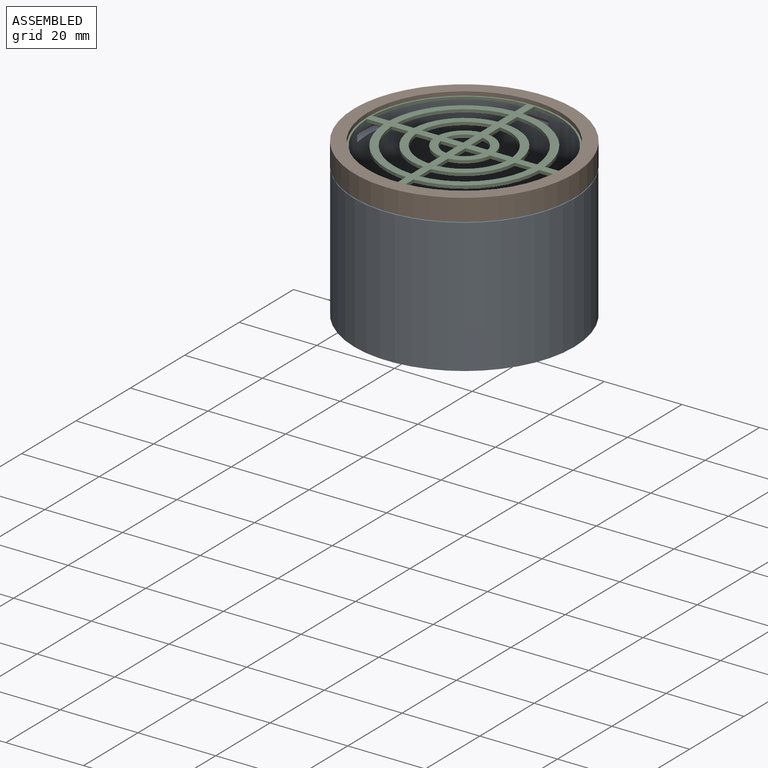
[diagram: assembled view]
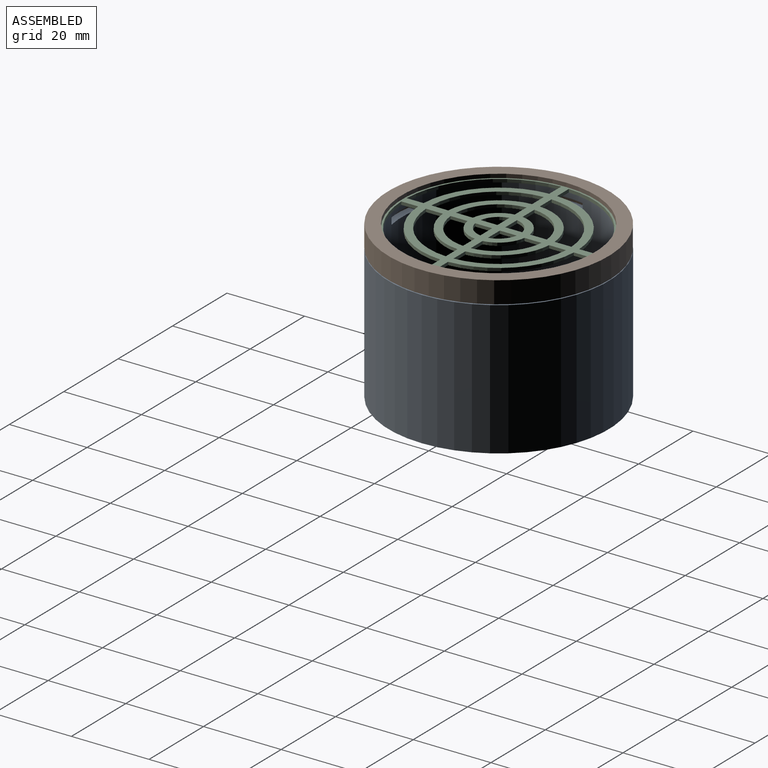
[diagram: assembled view, second angle]
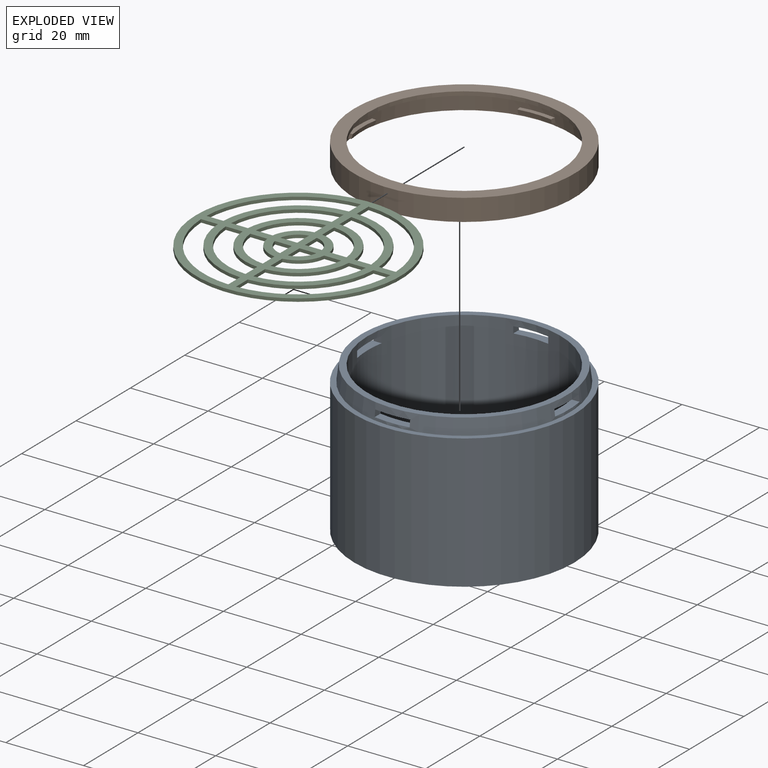
[diagram: exploded view]
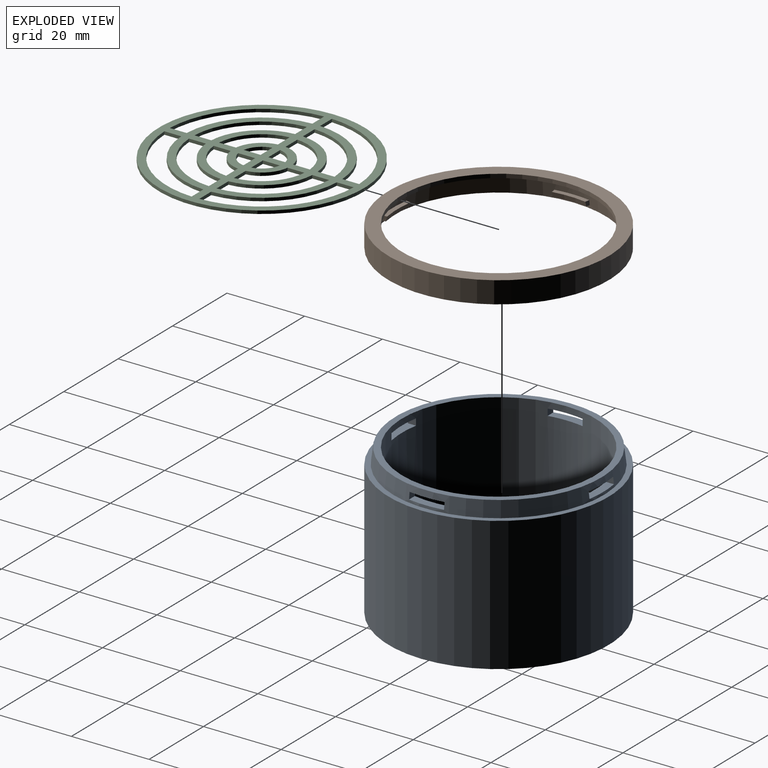
[diagram: exploded view, second angle]
ASSEMBLY  parts=3 mates=2
PART A: 22 faces, bbox 56.7x56.7x38.5 mm
  f0: plane 9x2.47mm, normal (0,0,1), area 18.7mm2, adj f5,f7,f8,f9
  f1: plane 2.09x1.7mm, normal (0,-1,0), area 3.4mm2, adj f4,f6,f8,f9
  f2: plane 9x2.26mm, normal (0,0,-1), area 16.7mm2, adj f5,f7,f8,f9
  f3: plane 2.09x1.7mm, normal (0,1,0), area 3.4mm2, adj f4,f6,f8,f9
  f4: plane 9x2.47mm, normal (0,0,1), area 18.7mm2, adj f1,f3,f8,f9
  f5: plane 2.09x1.7mm, normal (0,-1,0), area 3.4mm2, adj f0,f2,f8,f9
  f6: plane 9x2.26mm, normal (0,0,-1), area 16.7mm2, adj f1,f3,f8,f9
  f7: plane 2.09x1.7mm, normal (0,1,0), area 3.4mm2, adj f0,f2,f8,f9
  f8: cone r=27mm half-angle=7.1deg, axis (0,0,-1), area 615.6mm2, adj f0,f1,f2,f3,f4,f5,f6,f7
  f9: cylinder r=24.85mm len=49.7mm, axis (0,0,-1), area 5949.5mm2, adj f0,f1,f2,f3,f4,f5,f6,f7
  f10: plane 56.7x56.7mm, normal (0,0,-1), area 585mm2, adj f9,f11
  f11: cylinder r=28.35mm len=56.7mm, axis (0,0,-1), area 6145.2mm2, adj f10,f12
  f12: plane 56.7x56.7mm, normal (0,0,1), area 234.7mm2, adj f8,f11
  f13: plane 53x53mm, normal (0,0,1), area 266.2mm2, adj f8,f9
  f14: plane 2.09x1.7mm, normal (1,0,0), area 3.4mm2, adj f8,f9,f15,f17
  f15: plane 9x2.26mm, normal (0,0,-1), area 16.7mm2, adj f8,f9,f14,f16
  f16: plane 2.09x1.7mm, normal (-1,0,0), area 3.4mm2, adj f8,f9,f15,f17
  f17: plane 9x2.47mm, normal (0,0,1), area 18.7mm2, adj f8,f9,f14,f16
  f18: plane 2.09x1.7mm, normal (-1,0,0), area 3.4mm2, adj f8,f9,f20,f21
  f19: plane 2.09x1.7mm, normal (1,0,0), area 3.4mm2, adj f8,f9,f20,f21
  f20: plane 9x2.47mm, normal (0,0,1), area 18.7mm2, adj f8,f9,f18,f19
  f21: plane 9x2.26mm, normal (0,0,-1), area 16.7mm2, adj f8,f9,f18,f19
PART B: 26 faces, bbox 56.7x56.7x5.6 mm
  f0: plane 9x1.56mm, normal (0,0,1), area 10.6mm2, adj f1,f2,f4,f15
  f1: cone r=26.05mm half-angle=15deg, axis (0,0,-1), area 10.8mm2, adj f0,f2,f3,f4
  f2: plane 1.33x1.2mm, normal (-0.99,0.17,0), area 1.3mm2, adj f0,f1,f3,f15
  f3: plane 9.04x1.39mm, normal (0,0,-1), area 9.2mm2, adj f1,f2,f4,f15
  f4: plane 1.33x1.2mm, normal (0.99,0.17,0), area 1.3mm2, adj f0,f1,f3,f15
  f5: plane 9x1.56mm, normal (0,0,1), area 10.6mm2, adj f6,f7,f9,f15
  f6: cone r=26.05mm half-angle=15deg, axis (0,0,-1), area 10.8mm2, adj f5,f7,f8,f9
  f7: plane 1.33x1.2mm, normal (0.17,0.99,0), area 1.3mm2, adj f5,f6,f8,f15
  f8: plane 9.04x1.39mm, normal (0,0,-1), area 9.2mm2, adj f6,f7,f9,f15
  f9: plane 1.33x1.2mm, normal (0.17,-0.99,0), area 1.3mm2, adj f5,f6,f8,f15
  f10: plane 9x1.56mm, normal (0,0,1), area 10.6mm2, adj f11,f12,f14,f15
  f11: cone r=26.05mm half-angle=15deg, axis (0,0,-1), area 10.8mm2, adj f10,f12,f13,f14
  f12: plane 1.33x1.2mm, normal (0.99,-0.17,0), area 1.3mm2, adj f10,f11,f13,f15
  f13: plane 9.04x1.39mm, normal (0,0,-1), area 9.2mm2, adj f11,f12,f14,f15
  f14: plane 1.33x1.2mm, normal (-0.99,-0.17,0), area 1.3mm2, adj f10,f11,f13,f15
  f15: cone r=26.92mm half-angle=7.1deg, axis (0,0,-1), area 750.5mm2, adj f0,f2,f3,f4,f5,f7,f8,f9
  f16: cylinder r=24.85mm len=49.7mm, axis (0,0,-1), area 156.1mm2, adj f17,f20
  f17: plane 53.85x53.85mm, normal (0,0,-1), area 337.3mm2, adj f15,f16
  f18: plane 56.7x56.7mm, normal (0,0,-1), area 149.1mm2, adj f15,f19
  f19: cylinder r=28.35mm len=56.7mm, axis (0,0,-1), area 999.3mm2, adj f18,f20
  f20: plane 56.7x56.7mm, normal (0,0,1), area 585mm2, adj f16,f19
  f21: plane 9x1.56mm, normal (0,0,1), area 10.6mm2, adj f15,f22,f24,f25
  f22: cone r=26.05mm half-angle=15deg, axis (0,0,-1), area 10.8mm2, adj f21,f23,f24,f25
  f23: plane 9.04x1.39mm, normal (0,0,-1), area 9.2mm2, adj f15,f22,f24,f25
  f24: plane 1.33x1.2mm, normal (-0.17,0.99,0), area 1.3mm2, adj f15,f21,f22,f23
  f25: plane 1.33x1.2mm, normal (-0.17,-0.99,0), area 1.3mm2, adj f15,f21,f22,f23
PART C: 63 faces, bbox 52.8x52.8x0.8 mm
  f0: plane 4.35x0.8mm, normal (0,-1,0), area 3.5mm2, adj f1,f3,f45,f46
  f1: cylinder r=24.4mm len=23.38mm, axis (0,0,1), area 29.1mm2, adj f0,f2,f45,f46
  f2: plane 4.35x0.8mm, normal (1,0,0), area 3.5mm2, adj f1,f3,f45,f46
  f3: cylinder r=20.06mm len=19.03mm, axis (0,0,1), area 23.6mm2, adj f0,f2,f45,f46
  f4: plane 4.35x0.8mm, normal (0,-1,0), area 3.5mm2, adj f5,f7,f45,f46
  f5: cylinder r=18.06mm len=17.03mm, axis (0,0,1), area 21.1mm2, adj f4,f6,f45,f46
  f6: plane 4.35x0.8mm, normal (1,0,0), area 3.5mm2, adj f5,f7,f45,f46
  f7: cylinder r=13.73mm len=12.69mm, axis (0,0,1), area 15.6mm2, adj f4,f6,f45,f46
  f8: cylinder r=7.41mm len=6.35mm, axis (0,0,1), area 7.7mm2, adj f9,f11,f45,f46
  f9: plane 4.35x0.8mm, normal (1,0,0), area 3.5mm2, adj f8,f10,f45,f46
  f10: cylinder r=11.73mm len=10.69mm, axis (0,0,1), area 13.1mm2, adj f9,f11,f45,f46
  f11: plane 4.35x0.8mm, normal (0,-1,0), area 3.5mm2, adj f8,f10,f45,f46
  f12: plane 4.35x0.8mm, normal (1,0,0), area 3.5mm2, adj f13,f14,f45,f46
  f13: plane 4.35x0.8mm, normal (0,-1,0), area 3.5mm2, adj f12,f14,f45,f46
  f14: cylinder r=5.44mm len=4.35mm, axis (0,0,1), area 5.2mm2, adj f12,f13,f45,f46
  f15: plane 4.35x0.8mm, normal (-1,0,0), area 3.5mm2, adj f16,f18,f45,f46
  f16: cylinder r=24.4mm len=23.38mm, axis (0,0,1), area 29.1mm2, adj f15,f17,f45,f46
  f17: plane 4.35x0.8mm, normal (0,-1,0), area 3.5mm2, adj f16,f18,f45,f46
  f18: cylinder r=20.06mm len=19.03mm, axis (0,0,1), area 23.6mm2, adj f15,f17,f45,f46
  f19: plane 4.35x0.8mm, normal (-1,0,0), area 3.5mm2, adj f20,f22,f45,f46
  f20: cylinder r=18.06mm len=17.03mm, axis (0,0,1), area 21.1mm2, adj f19,f21,f45,f46
  f21: plane 4.35x0.8mm, normal (0,-1,0), area 3.5mm2, adj f20,f22,f45,f46
  f22: cylinder r=13.73mm len=12.69mm, axis (0,0,1), area 15.6mm2, adj f19,f21,f45,f46
  f23: cylinder r=7.41mm len=6.35mm, axis (0,0,1), area 7.7mm2, adj f24,f26,f45,f46
  f24: plane 4.35x0.8mm, normal (0,-1,0), area 3.5mm2, adj f23,f25,f45,f46
  f25: cylinder r=11.73mm len=10.69mm, axis (0,0,1), area 13.1mm2, adj f24,f26,f45,f46
  f26: plane 4.35x0.8mm, normal (-1,0,0), area 3.5mm2, adj f23,f25,f45,f46
  f27: plane 4.35x0.8mm, normal (0,-1,0), area 3.5mm2, adj f28,f29,f45,f46
  f28: plane 4.35x0.8mm, normal (-1,0,0), area 3.5mm2, adj f27,f29,f45,f46
  f29: cylinder r=5.44mm len=4.35mm, axis (0,0,1), area 5.2mm2, adj f27,f28,f45,f46
  f30: plane 4.35x0.8mm, normal (0,1,0), area 3.5mm2, adj f31,f33,f45,f46
  f31: cylinder r=24.4mm len=23.38mm, axis (0,0,1), area 29.1mm2, adj f30,f32,f45,f46
  f32: plane 4.35x0.8mm, normal (-1,0,0), area 3.5mm2, adj f31,f33,f45,f46
  f33: cylinder r=20.06mm len=19.03mm, axis (0,0,1), area 23.6mm2, adj f30,f32,f45,f46
  f34: plane 4.35x0.8mm, normal (0,1,0), area 3.5mm2, adj f35,f37,f45,f46
  f35: cylinder r=18.06mm len=17.03mm, axis (0,0,1), area 21.1mm2, adj f34,f36,f45,f46
  f36: plane 4.35x0.8mm, normal (-1,0,0), area 3.5mm2, adj f35,f37,f45,f46
  f37: cylinder r=13.73mm len=12.69mm, axis (0,0,1), area 15.6mm2, adj f34,f36,f45,f46
  f38: cylinder r=7.41mm len=6.35mm, axis (0,0,1), area 7.7mm2, adj f39,f41,f45,f46
  f39: plane 4.35x0.8mm, normal (-1,0,0), area 3.5mm2, adj f38,f40,f45,f46
  f40: cylinder r=11.73mm len=10.69mm, axis (0,0,1), area 13.1mm2, adj f39,f41,f45,f46
  f41: plane 4.35x0.8mm, normal (0,1,0), area 3.5mm2, adj f38,f40,f45,f46
  f42: plane 4.35x0.8mm, normal (-1,0,0), area 3.5mm2, adj f43,f44,f45,f46
  f43: plane 4.35x0.8mm, normal (0,1,0), area 3.5mm2, adj f42,f44,f45,f46
  f44: cylinder r=5.44mm len=4.35mm, axis (0,0,1), area 5.2mm2, adj f42,f43,f45,f46
  f45: plane 52.8x52.8mm, normal (0,0,-1), area 940.9mm2, adj f0,f1,f2,f3,f4,f5,f6,f7
  f46: plane 52.8x52.8mm, normal (0,0,1), area 940.9mm2, adj f0,f1,f2,f3,f4,f5,f6,f7
  f47: cylinder r=26.4mm len=52.8mm, axis (0,0,-1), area 132.7mm2, adj f45,f46
  f48: cylinder r=5.44mm len=4.35mm, axis (0,0,1), area 5.2mm2, adj f45,f46,f49,f50
  f49: plane 4.35x0.8mm, normal (1,0,0), area 3.5mm2, adj f45,f46,f48,f50
  f50: plane 4.35x0.8mm, normal (0,1,0), area 3.5mm2, adj f45,f46,f48,f49
  f51: cylinder r=20.06mm len=19.03mm, axis (0,0,1), area 23.6mm2, adj f45,f46,f52,f54
  f52: plane 4.35x0.8mm, normal (0,1,0), area 3.5mm2, adj f45,f46,f51,f53
  f53: cylinder r=24.4mm len=23.38mm, axis (0,0,1), area 29.1mm2, adj f45,f46,f52,f54
  f54: plane 4.35x0.8mm, normal (1,0,0), area 3.5mm2, adj f45,f46,f51,f53
  f55: cylinder r=7.41mm len=6.35mm, axis (0,0,1), area 7.7mm2, adj f45,f46,f56,f58
  f56: plane 4.35x0.8mm, normal (0,1,0), area 3.5mm2, adj f45,f46,f55,f57
  f57: cylinder r=11.73mm len=10.69mm, axis (0,0,1), area 13.1mm2, adj f45,f46,f56,f58
  f58: plane 4.35x0.8mm, normal (1,0,0), area 3.5mm2, adj f45,f46,f55,f57
  f59: cylinder r=13.73mm len=12.69mm, axis (0,0,1), area 15.6mm2, adj f45,f46,f60,f62
  f60: plane 4.35x0.8mm, normal (0,1,0), area 3.5mm2, adj f45,f46,f59,f61
  f61: cylinder r=18.06mm len=17.03mm, axis (0,0,1), area 21.1mm2, adj f45,f46,f60,f62
  f62: plane 4.35x0.8mm, normal (1,0,0), area 3.5mm2, adj f45,f46,f59,f61
PLACE A at identity
PLACE B t=(0,0,-0.21)mm
PLACE C t=(0,0,-0.01)mm
MATE slider C.f61 <-> B.f1  axis (0,0,1) through (0,0,0.8)mm
MATE slider A.f8 <-> C.f61  axis (0,0,1) through (0,0,0)mm
